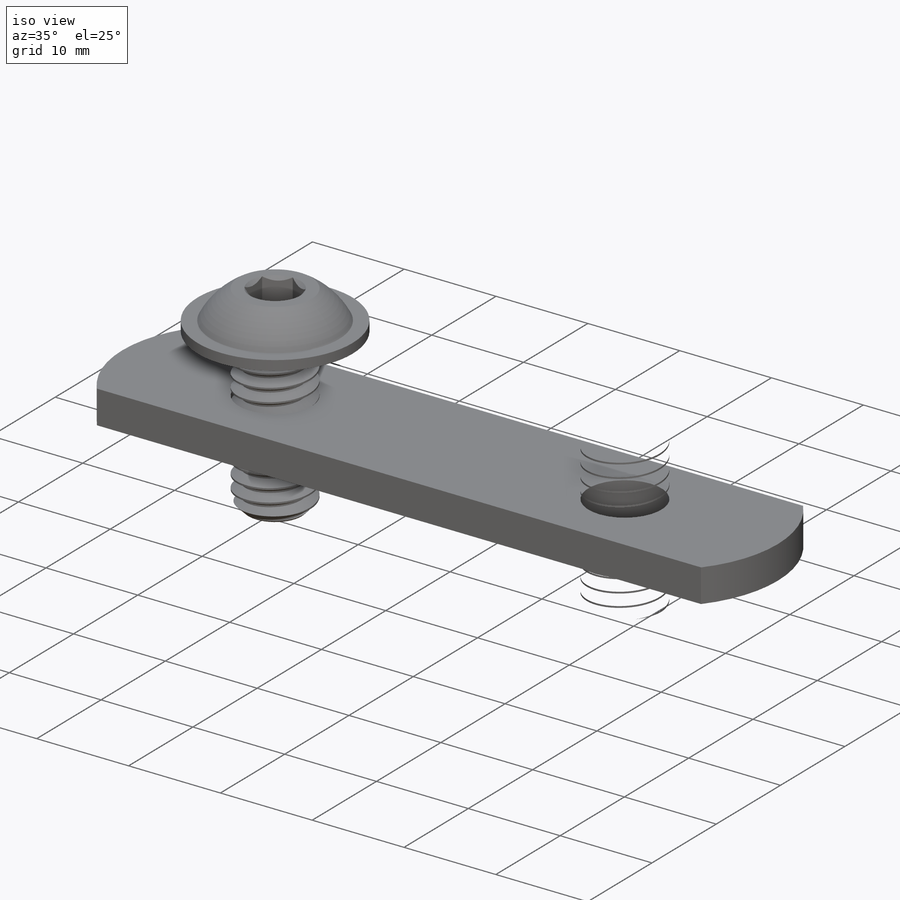
[diagram: iso view]
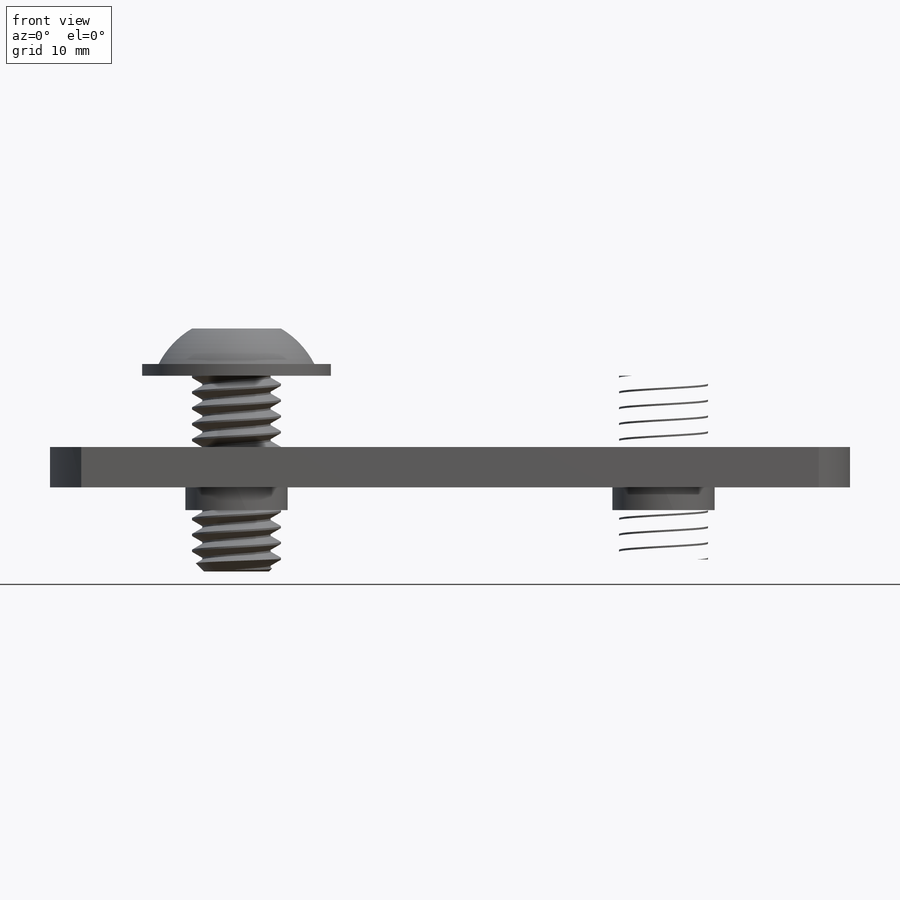
[diagram: front view]
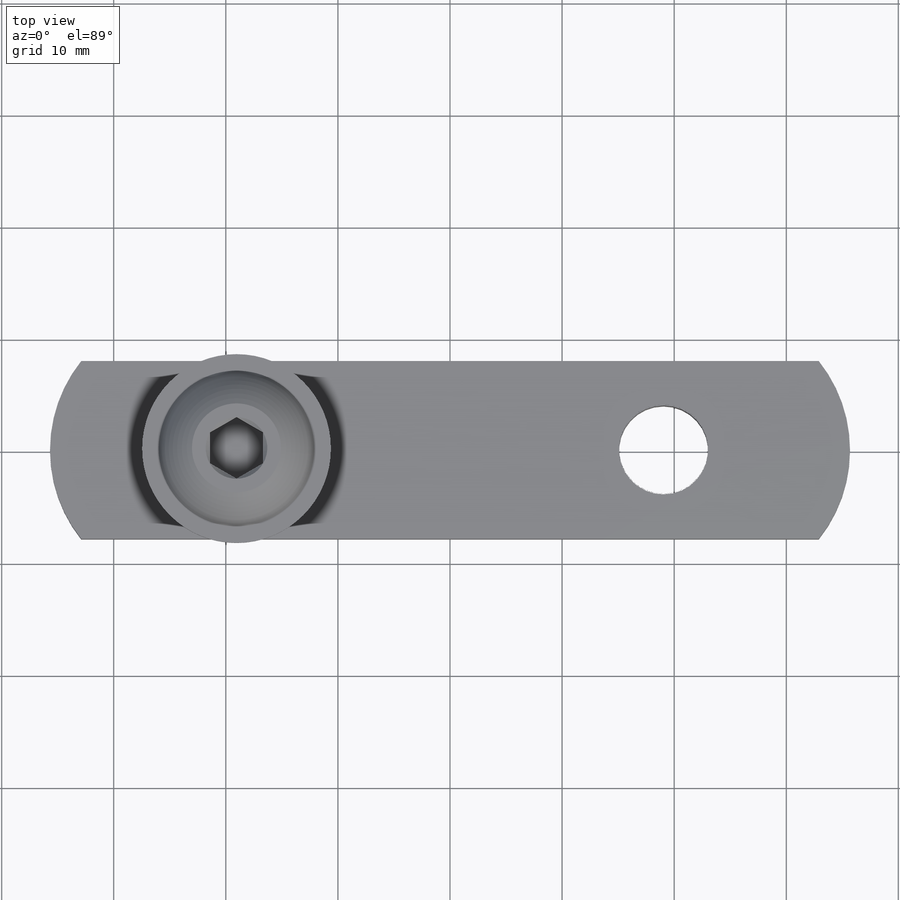
[diagram: top view]
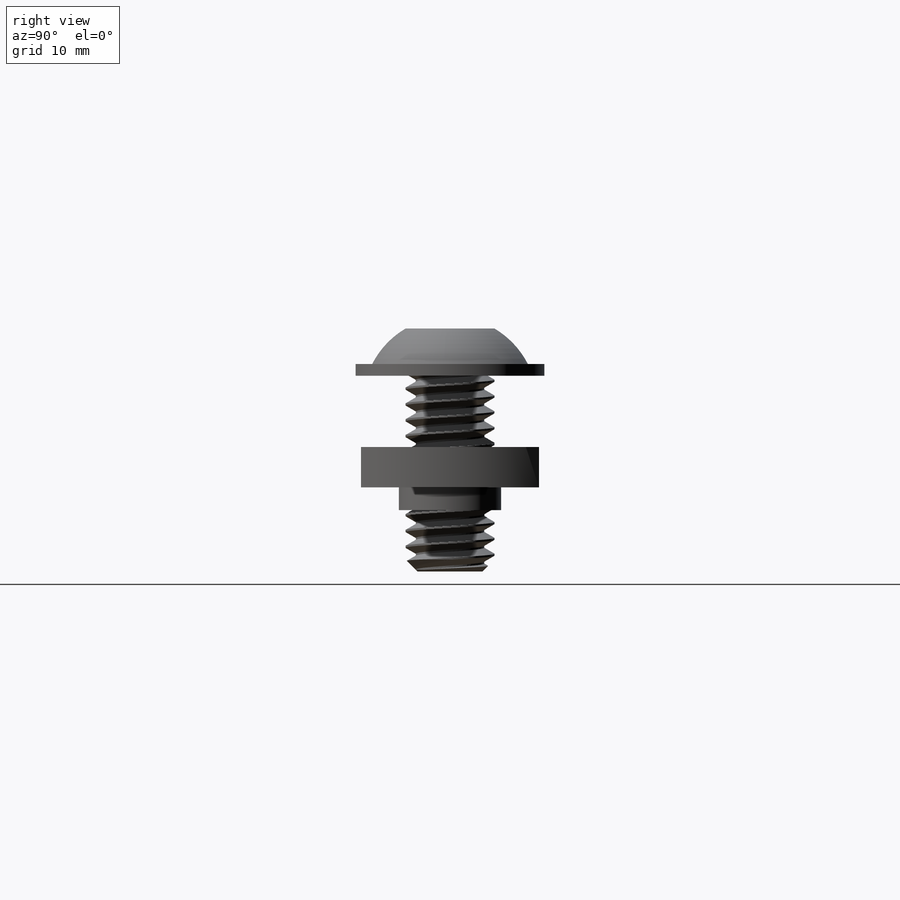
[diagram: right view]
SOLIDWORKS PART (.sldprt)
format: sldprt  version: not decoded by parser v0  size: 1,193,472 bytes
history: native  units: mm
features: sketch x10, extrude x3, cut_extrude x3, material x1, helix x1, plane x1, sweep x1, revolve x1, move_body x1 (+15 scaffold rows collapsed)
feature tree (37):
  scaffold x15  (default folders/planes/origin — collapsed)
  material  "Material <not specified>"
  sketch  "Sketch1"  dims[D1=7.9375mm D2=38.1mm]
  extrude  "Boss-Extrude1"  Depth=17.4625mm
  sketch  "Sketch2"  dims[D1=0.0mm]
  helix  "Helix/Spiral1"  Pitch=18.873611mm
  plane  "Plane1"
  sketch  "Sketch3"  dims[D1=~1.411111mm D2=~0.176389mm D3=25.4mm]
  sweep  "Cut-Sweep1"
  sketch  "Sketch4"
  cut_extrude  "Cut-Extrude1"  Depth=1.411111mm
  sketch  "Sketch5"  dims[D1=4.2164mm D2=1.0541mm D3=16.8402mm D4=13.8938mm]
  revolve  "Revolve1"  Angle=360deg
  sketch  "Sketch6"  dims[D1=4.7625mm]
  cut_extrude  "Cut-Extrude2"  Depth=2.8575mm
  sketch  "Sketch7"
  cut_extrude  "Cut-Extrude3"  Depth=2.8575mm
  move_body  "Body-Move/Copy1"
  sketch  "Sketch8"  dims[c1.D2=~3.469317mm c1.D5=12.7mm c1.D6=12.7mm c2.D2=25.4mm c2.D3=11.2522mm c3.D2=71.374mm c3.D3=15.875mm c3.D4=16.637mm c3.D1=0.0mm]
  extrude  "Boss-Extrude2"  Depth=3.6068mm
  sketch  "Sketch9"  dims[D1=1.524mm]
  extrude  "Boss-Extrude3"  Depth=2.032mm
  sketch  "SketchZ"
decode coverage: 15 of 20 modeling features carry decoded parameters
note: ~ marks probable driven/reference dimensions
note: suppression state not decoded; provenance and decode notes live in map.json
